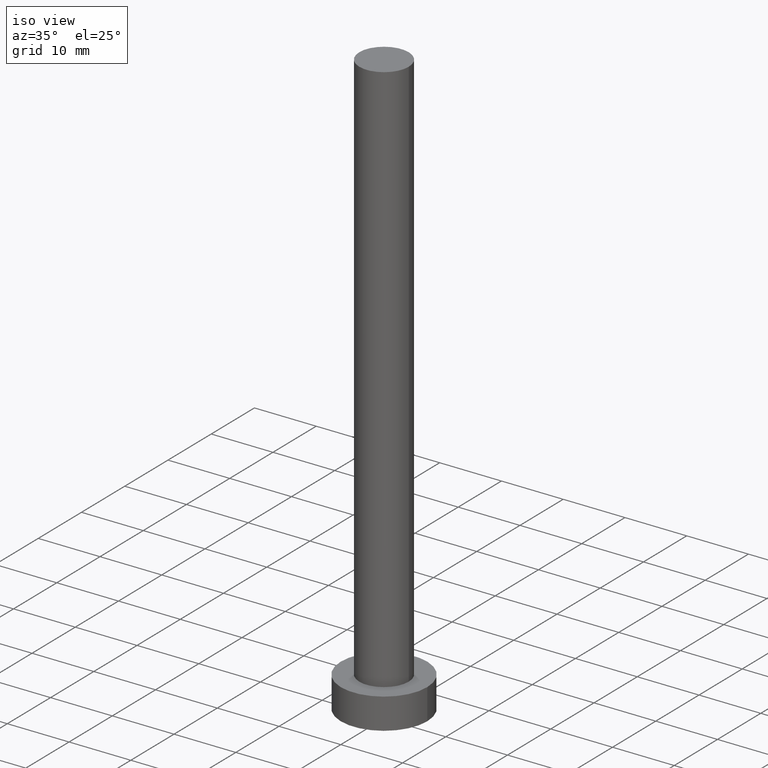
[diagram: clean part render]
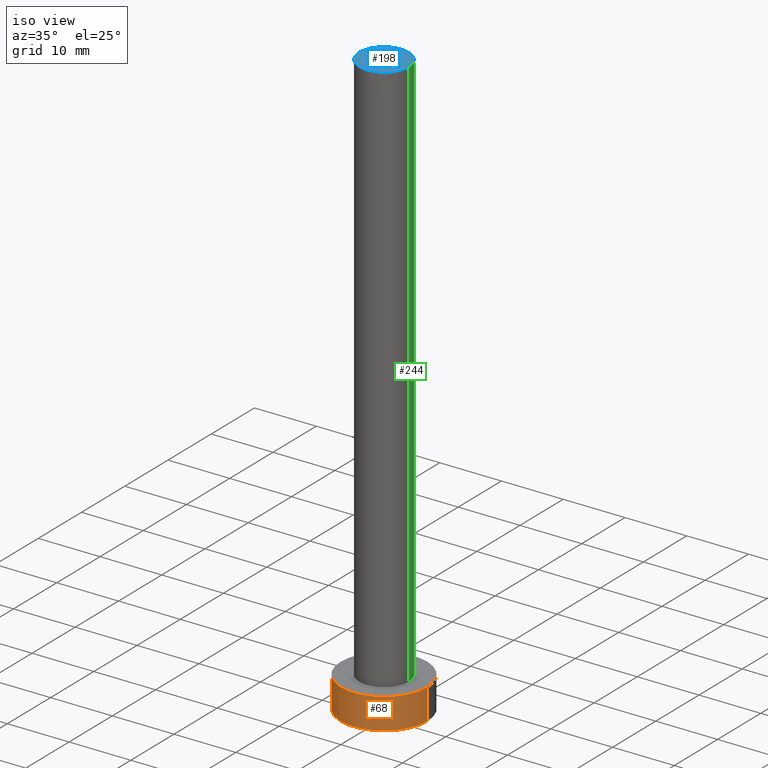
[diagram: same view with three faces highlighted in distinct colors, each labeled with its STEP entity id]
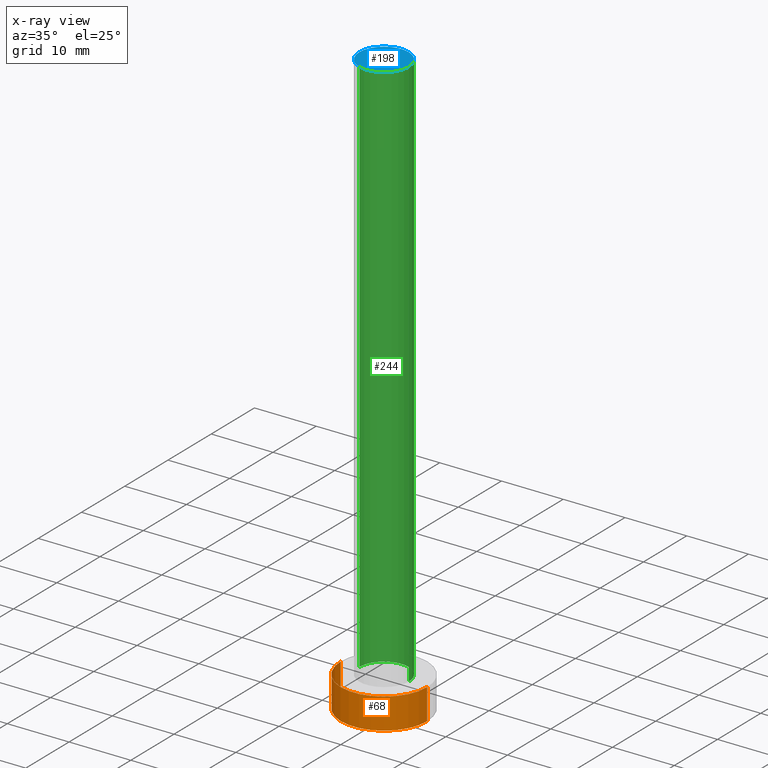
[diagram: x-ray of the same camera — body ghosted, the three highlighted faces saturated]
A machine part, iso view with three faces highlighted in distinct colors.
The next image is the same camera in x-ray (body ghosted, the three faces saturated) — at least one of them is partly hidden behind the body in this view.
Their STEP definitions:

[orange] entity #68 — the highlighted cylindrical surface (partial cylindrical patch) has radius 7 mm, axis along (-0, -0, -1).
#1 = LINE ( 'NONE', #160, #156 ) ;
#10 = DIRECTION ( 'NONE',  ( -0.000000000000000000, -0.000000000000000000, -1.000000000000000000 ) ) ;
#14 = DIRECTION ( 'NONE',  ( -0.000000000000000000, -0.000000000000000000, -1.000000000000000000 ) ) ;
#26 = VERTEX_POINT ( 'NONE', #71 ) ;
#37 = EDGE_CURVE ( 'NONE', #114, #26, #89, .T. ) ;
#44 = VERTEX_POINT ( 'NONE', #72 ) ;
#54 = CARTESIAN_POINT ( 'NONE',  ( 0.000000000000000000, 0.000000000000000000, 5.000000000000000000 ) ) ;
#68 = ADVANCED_FACE ( 'NONE', ( #203 ), #102, .T. ) ;
#71 = CARTESIAN_POINT ( 'NONE',  ( -7.000000000000000000, 0.000000000000000000, 0.000000000000000000 ) ) ;
#72 = CARTESIAN_POINT ( 'NONE',  ( 7.000000000000000000, 8.572527594031473190E-16, 5.000000000000000000 ) ) ;
#84 = VERTEX_POINT ( 'NONE', #92 ) ;
#88 = DIRECTION ( 'NONE',  ( 0.000000000000000000, 0.000000000000000000, 1.000000000000000000 ) ) ;
#89 = LINE ( 'NONE', #152, #222 ) ;
#90 = EDGE_CURVE ( 'NONE', #114, #44, #128, .T. ) ;
#91 = DIRECTION ( 'NONE',  ( 1.000000000000000000, 0.000000000000000000, 0.000000000000000000 ) ) ;
#92 = CARTESIAN_POINT ( 'NONE',  ( 7.000000000000000000, 8.572527594031473190E-16, 0.000000000000000000 ) ) ;
#93 = AXIS2_PLACEMENT_3D ( 'NONE', #191, #10, #167 ) ;
#102 = CYLINDRICAL_SURFACE ( 'NONE', #93, 7.000000000000000000 ) ;
#107 = DIRECTION ( 'NONE',  ( 1.000000000000000000, 0.000000000000000000, 0.000000000000000000 ) ) ;
#113 = DIRECTION ( 'NONE',  ( -0.000000000000000000, -0.000000000000000000, -1.000000000000000000 ) ) ;
#114 = VERTEX_POINT ( 'NONE', #224 ) ;
#121 = EDGE_CURVE ( 'NONE', #44, #84, #1, .T. ) ;
#128 = CIRCLE ( 'NONE', #236, 7.000000000000000000 ) ;
#135 = ORIENTED_EDGE ( 'NONE', *, *, #238, .T. ) ;
#140 = EDGE_LOOP ( 'NONE', ( #216, #143, #214, #135 ) ) ;
#143 = ORIENTED_EDGE ( 'NONE', *, *, #90, .F. ) ;
#152 = CARTESIAN_POINT ( 'NONE',  ( -7.000000000000000000, 0.000000000000000000, 5.000000000000000000 ) ) ;
#154 = DIRECTION ( 'NONE',  ( 0.000000000000000000, 0.000000000000000000, 1.000000000000000000 ) ) ;
#156 = VECTOR ( 'NONE', #113, 1000.000000000000000 ) ;
#160 = CARTESIAN_POINT ( 'NONE',  ( 7.000000000000000000, 8.572527594031473190E-16, 5.000000000000000000 ) ) ;
#164 = CIRCLE ( 'NONE', #225, 7.000000000000000000 ) ;
#167 = DIRECTION ( 'NONE',  ( -1.000000000000000000, 0.000000000000000000, 0.000000000000000000 ) ) ;
#191 = CARTESIAN_POINT ( 'NONE',  ( 0.000000000000000000, 0.000000000000000000, 5.000000000000000000 ) ) ;
#203 = FACE_OUTER_BOUND ( 'NONE', #140, .T. ) ;
#214 = ORIENTED_EDGE ( 'NONE', *, *, #37, .T. ) ;
#215 = CARTESIAN_POINT ( 'NONE',  ( 0.000000000000000000, 0.000000000000000000, 0.000000000000000000 ) ) ;
#216 = ORIENTED_EDGE ( 'NONE', *, *, #121, .F. ) ;
#222 = VECTOR ( 'NONE', #14, 1000.000000000000000 ) ;
#224 = CARTESIAN_POINT ( 'NONE',  ( -7.000000000000000000, 0.000000000000000000, 5.000000000000000000 ) ) ;
#225 = AXIS2_PLACEMENT_3D ( 'NONE', #215, #88, #91 ) ;
#236 = AXIS2_PLACEMENT_3D ( 'NONE', #54, #154, #107 ) ;
#238 = EDGE_CURVE ( 'NONE', #26, #84, #164, .T. ) ;

[blue] entity #198 — the highlighted planar face has unit normal (0, 0, 1).
#7 = VERTEX_POINT ( 'NONE', #243 ) ;
#11 = FACE_OUTER_BOUND ( 'NONE', #183, .T. ) ;
#15 = DIRECTION ( 'NONE',  ( 1.000000000000000000, 0.000000000000000000, -0.000000000000000000 ) ) ;
#18 = CARTESIAN_POINT ( 'NONE',  ( 0.000000000000000000, 0.000000000000000000, 95.00000000000000000 ) ) ;
#20 = AXIS2_PLACEMENT_3D ( 'NONE', #119, #35, #15 ) ;
#35 = DIRECTION ( 'NONE',  ( 0.000000000000000000, 0.000000000000000000, 1.000000000000000000 ) ) ;
#48 = DIRECTION ( 'NONE',  ( 0.000000000000000000, 0.000000000000000000, 1.000000000000000000 ) ) ;
#75 = DIRECTION ( 'NONE',  ( 1.000000000000000000, 0.000000000000000000, 0.000000000000000000 ) ) ;
#77 = EDGE_CURVE ( 'NONE', #7, #101, #120, .T. ) ;
#80 = CIRCLE ( 'NONE', #189, 4.000000000000000000 ) ;
#101 = VERTEX_POINT ( 'NONE', #172 ) ;
#119 = CARTESIAN_POINT ( 'NONE',  ( 0.000000000000000000, 0.000000000000000000, 95.00000000000000000 ) ) ;
#120 = CIRCLE ( 'NONE', #127, 4.000000000000000000 ) ;
#127 = AXIS2_PLACEMENT_3D ( 'NONE', #18, #173, #75 ) ;
#149 = CARTESIAN_POINT ( 'NONE',  ( 0.000000000000000000, 0.000000000000000000, 95.00000000000000000 ) ) ;
#168 = DIRECTION ( 'NONE',  ( 1.000000000000000000, 0.000000000000000000, 0.000000000000000000 ) ) ;
#172 = CARTESIAN_POINT ( 'NONE',  ( 4.000000000000000000, 4.898587196589411843E-16, 95.00000000000000000 ) ) ;
#173 = DIRECTION ( 'NONE',  ( 0.000000000000000000, 0.000000000000000000, 1.000000000000000000 ) ) ;
#182 = ORIENTED_EDGE ( 'NONE', *, *, #77, .T. ) ;
#183 = EDGE_LOOP ( 'NONE', ( #182, #204 ) ) ;
#189 = AXIS2_PLACEMENT_3D ( 'NONE', #149, #48, #168 ) ;
#198 = ADVANCED_FACE ( 'NONE', ( #11 ), #220, .T. ) ;
#204 = ORIENTED_EDGE ( 'NONE', *, *, #251, .T. ) ;
#220 = PLANE ( 'NONE',  #20 ) ;
#243 = CARTESIAN_POINT ( 'NONE',  ( -4.000000000000000000, 0.000000000000000000, 95.00000000000000000 ) ) ;
#251 = EDGE_CURVE ( 'NONE', #101, #7, #80, .T. ) ;

[green] entity #244 — the highlighted cylindrical surface (edge-blend (fillet) strip) has radius 4 mm, axis along (-0, -0, -1).
#7 = VERTEX_POINT ( 'NONE', #243 ) ;
#8 = ORIENTED_EDGE ( 'NONE', *, *, #147, .T. ) ;
#13 = DIRECTION ( 'NONE',  ( -1.000000000000000000, 0.000000000000000000, 0.000000000000000000 ) ) ;
#19 = VECTOR ( 'NONE', #210, 1000.000000000000000 ) ;
#21 = EDGE_CURVE ( 'NONE', #101, #57, #169, .T. ) ;
#46 = ORIENTED_EDGE ( 'NONE', *, *, #251, .F. ) ;
#48 = DIRECTION ( 'NONE',  ( 0.000000000000000000, 0.000000000000000000, 1.000000000000000000 ) ) ;
#49 = AXIS2_PLACEMENT_3D ( 'NONE', #50, #66, #13 ) ;
#50 = CARTESIAN_POINT ( 'NONE',  ( 0.000000000000000000, 0.000000000000000000, 95.00000000000000000 ) ) ;
#57 = VERTEX_POINT ( 'NONE', #153 ) ;
#60 = ORIENTED_EDGE ( 'NONE', *, *, #21, .T. ) ;
#63 = AXIS2_PLACEMENT_3D ( 'NONE', #100, #192, #248 ) ;
#66 = DIRECTION ( 'NONE',  ( -0.000000000000000000, -0.000000000000000000, -1.000000000000000000 ) ) ;
#67 = ORIENTED_EDGE ( 'NONE', *, *, #95, .F. ) ;
#80 = CIRCLE ( 'NONE', #189, 4.000000000000000000 ) ;
#95 = EDGE_CURVE ( 'NONE', #7, #96, #223, .T. ) ;
#96 = VERTEX_POINT ( 'NONE', #211 ) ;
#100 = CARTESIAN_POINT ( 'NONE',  ( 0.000000000000000000, 0.000000000000000000, 5.000000000000000000 ) ) ;
#101 = VERTEX_POINT ( 'NONE', #172 ) ;
#105 = DIRECTION ( 'NONE',  ( -0.000000000000000000, -0.000000000000000000, -1.000000000000000000 ) ) ;
#106 = CIRCLE ( 'NONE', #63, 4.000000000000000000 ) ;
#132 = CARTESIAN_POINT ( 'NONE',  ( -4.000000000000000000, 0.000000000000000000, 95.00000000000000000 ) ) ;
#147 = EDGE_CURVE ( 'NONE', #57, #96, #106, .T. ) ;
#149 = CARTESIAN_POINT ( 'NONE',  ( 0.000000000000000000, 0.000000000000000000, 95.00000000000000000 ) ) ;
#153 = CARTESIAN_POINT ( 'NONE',  ( 4.000000000000000000, 4.898587196589411843E-16, 5.000000000000000000 ) ) ;
#168 = DIRECTION ( 'NONE',  ( 1.000000000000000000, 0.000000000000000000, 0.000000000000000000 ) ) ;
#169 = LINE ( 'NONE', #247, #254 ) ;
#170 = FACE_OUTER_BOUND ( 'NONE', #185, .T. ) ;
#172 = CARTESIAN_POINT ( 'NONE',  ( 4.000000000000000000, 4.898587196589411843E-16, 95.00000000000000000 ) ) ;
#185 = EDGE_LOOP ( 'NONE', ( #46, #60, #8, #67 ) ) ;
#189 = AXIS2_PLACEMENT_3D ( 'NONE', #149, #48, #168 ) ;
#192 = DIRECTION ( 'NONE',  ( 0.000000000000000000, 0.000000000000000000, 1.000000000000000000 ) ) ;
#210 = DIRECTION ( 'NONE',  ( -0.000000000000000000, -0.000000000000000000, -1.000000000000000000 ) ) ;
#211 = CARTESIAN_POINT ( 'NONE',  ( -4.000000000000000000, 0.000000000000000000, 5.000000000000000000 ) ) ;
#223 = LINE ( 'NONE', #132, #19 ) ;
#239 = CYLINDRICAL_SURFACE ( 'NONE', #49, 4.000000000000000000 ) ;
#243 = CARTESIAN_POINT ( 'NONE',  ( -4.000000000000000000, 0.000000000000000000, 95.00000000000000000 ) ) ;
#244 = ADVANCED_FACE ( 'NONE', ( #170 ), #239, .T. ) ;
#247 = CARTESIAN_POINT ( 'NONE',  ( 4.000000000000000000, 4.898587196589411843E-16, 95.00000000000000000 ) ) ;
#248 = DIRECTION ( 'NONE',  ( 1.000000000000000000, 0.000000000000000000, 0.000000000000000000 ) ) ;
#251 = EDGE_CURVE ( 'NONE', #101, #7, #80, .T. ) ;
#254 = VECTOR ( 'NONE', #105, 1000.000000000000000 ) ;